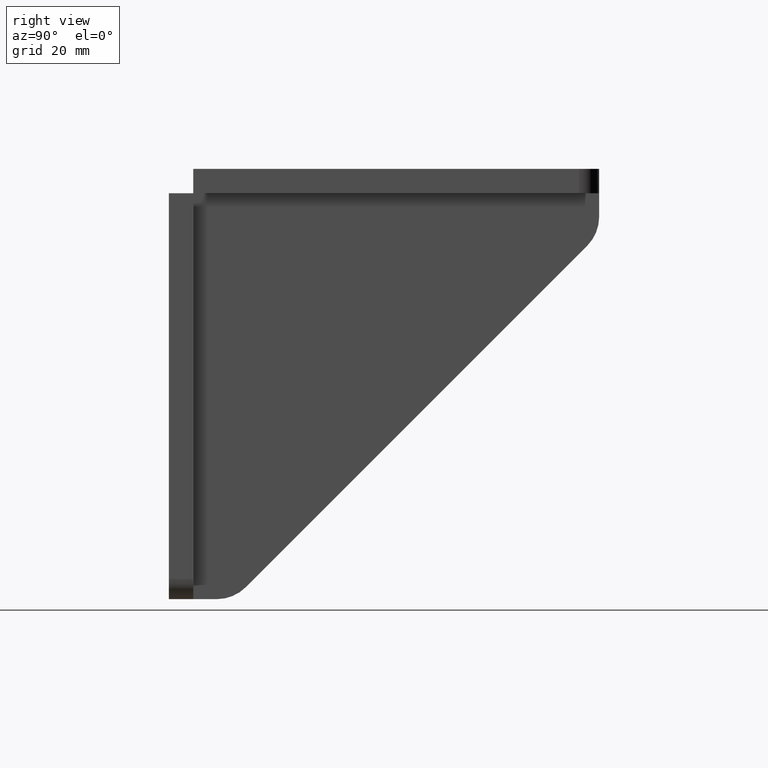
[diagram: clean part render]
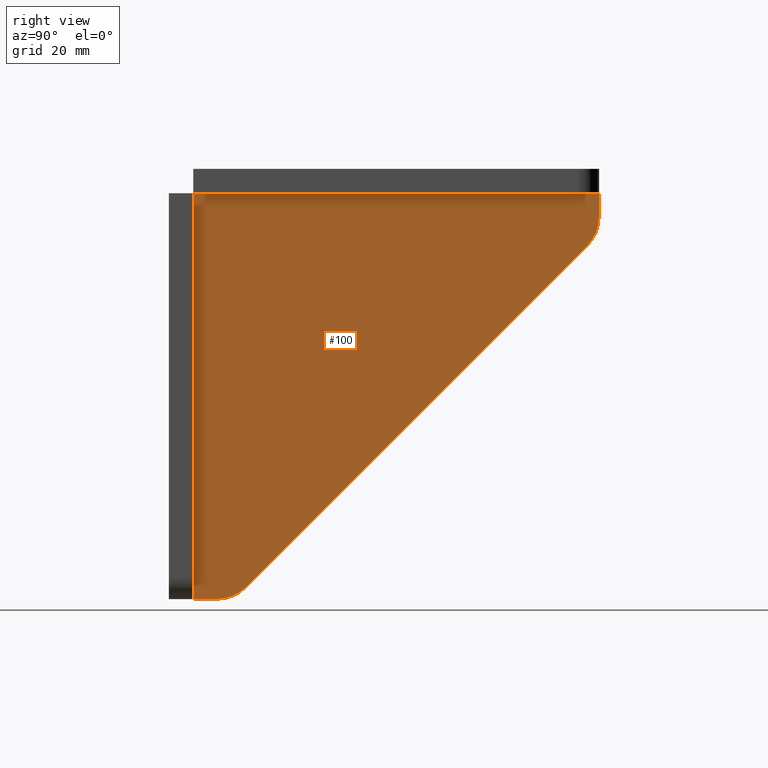
[diagram: same view with one face highlighted and labeled with its STEP entity id]
A machine part, right view. The second image highlights one B-rep face of the part: STEP entity #100.
In plain terms, the highlighted planar face has unit normal (-1, -0, 0).
Its self-contained STEP definition (entity closure, byte-faithful):
#13 = CARTESIAN_POINT ( 'NONE',  ( -11.99999999999990052, 40.00000000000000711, -4.440892098500626162E-13 ) ) ;
#28 = EDGE_CURVE ( 'NONE', #1065, #1326, #368, .T. ) ;
#38 = ORIENTED_EDGE ( 'NONE', *, *, #405, .T. ) ;
#45 = CARTESIAN_POINT ( 'NONE',  ( 12.92893218813440015, 97.07106781186548972, 2.775557561562891351E-13 ) ) ;
#54 = CARTESIAN_POINT ( 'NONE',  ( 0.000000000000000000, 99.99999999999998579, 0.000000000000000000 ) ) ;
#58 = CARTESIAN_POINT ( 'NONE',  ( 0.000000000000000000, 99.99999999999998579, 0.000000000000000000 ) ) ;
#85 = CIRCLE ( 'NONE', #872, 1.000000000000000000 ) ;
#98 = CARTESIAN_POINT ( 'NONE',  ( 59.99999999999994316, -6.000000000000000888, -1.387778780781445676E-13 ) ) ;
#100 = ADVANCED_FACE ( 'NONE', ( #884 ), #362, .F. ) ;
#104 = ORIENTED_EDGE ( 'NONE', *, *, #179, .T. ) ;
#112 = VECTOR ( 'NONE', #1224, 1000.000000000000000 ) ;
#117 = DIRECTION ( 'NONE',  ( 1.000000000000000000, 3.620748295448003404E-32, -3.978414497066003544E-35 ) ) ;
#118 = CARTESIAN_POINT ( 'NONE',  ( 39.99999999999970157, -11.99999999999999645, -1.665334536937734811E-13 ) ) ;
#120 = VERTEX_POINT ( 'NONE', #240 ) ;
#122 = EDGE_CURVE ( 'NONE', #563, #1318, #738, .T. ) ;
#127 = ORIENTED_EDGE ( 'NONE', *, *, #1520, .T. ) ;
#136 = CIRCLE ( 'NONE', #1249, 1.000000000000000000 ) ;
#137 = EDGE_CURVE ( 'NONE', #465, #1589, #345, .T. ) ;
#170 = CARTESIAN_POINT ( 'NONE',  ( 39.99999999999970157, -7.806255641895631925E-15, -1.665334536937734811E-13 ) ) ;
#176 = ORIENTED_EDGE ( 'NONE', *, *, #390, .T. ) ;
#177 = DIRECTION ( 'NONE',  ( -3.978414497066059672E-35, 5.700752635386218125E-32, 1.000000000000000000 ) ) ;
#179 = EDGE_CURVE ( 'NONE', #1533, #1065, #136, .T. ) ;
#181 = LINE ( 'NONE', #1538, #1122 ) ;
#187 = DIRECTION ( 'NONE',  ( -1.000000000000000000, 3.556183125752456121E-15, 0.000000000000000000 ) ) ;
#215 = LINE ( 'NONE', #1217, #455 ) ;
#224 = CARTESIAN_POINT ( 'NONE',  ( -6.000000000000782485, 40.00000000000000711, -3.885780586188047891E-13 ) ) ;
#240 = CARTESIAN_POINT ( 'NONE',  ( 59.99999999999994316, -4.999999999999997335, -1.387778780781445676E-13 ) ) ;
#256 = DIRECTION ( 'NONE',  ( -1.000000000000000000, -3.620748295448003404E-32, 3.978414497066003544E-35 ) ) ;
#270 = DIRECTION ( 'NONE',  ( -3.978414497066059672E-35, 5.700752635386218125E-32, 1.000000000000000000 ) ) ;
#278 = CARTESIAN_POINT ( 'NONE',  ( 58.99999999999960920, -6.000000000000000888, -1.665334536937734811E-13 ) ) ;
#279 = EDGE_CURVE ( 'NONE', #1326, #563, #181, .T. ) ;
#283 = CARTESIAN_POINT ( 'NONE',  ( -11.99999999999990052, 59.99999999999997158, -3.885780586188047891E-13 ) ) ;
#290 = VECTOR ( 'NONE', #117, 1000.000000000000000 ) ;
#309 = CARTESIAN_POINT ( 'NONE',  ( 39.99999999999970157, -4.999999999999997335, -1.665334536937734811E-13 ) ) ;
#331 = CARTESIAN_POINT ( 'NONE',  ( 41.00000000000003553, -6.000000000000003553, -2.775557561562891351E-14 ) ) ;
#342 = CARTESIAN_POINT ( 'NONE',  ( -6.000000000000782485, 58.99999999999997158, -3.885780586188047891E-13 ) ) ;
#345 = CIRCLE ( 'NONE', #1069, 9.999999999999994671 ) ;
#357 = LINE ( 'NONE', #1347, #112 ) ;
#362 = PLANE ( 'NONE',  #529 ) ;
#368 = LINE ( 'NONE', #13, #1070 ) ;
#374 = VECTOR ( 'NONE', #1232, 1000.000000000000000 ) ;
#390 = EDGE_CURVE ( 'NONE', #860, #1094, #968, .T. ) ;
#396 = DIRECTION ( 'NONE',  ( -1.000000000000000000, 0.000000000000000000, 0.000000000000000000 ) ) ;
#398 = DIRECTION ( 'NONE',  ( -4.237045877651918877E-32, -1.000000000000000000, -4.005934284325450574E-32 ) ) ;
#405 = EDGE_CURVE ( 'NONE', #962, #1533, #934, .T. ) ;
#418 = ORIENTED_EDGE ( 'NONE', *, *, #1554, .T. ) ;
#455 = VECTOR ( 'NONE', #703, 1000.000000000000000 ) ;
#465 = VERTEX_POINT ( 'NONE', #475 ) ;
#467 = LINE ( 'NONE', #591, #1570 ) ;
#475 = CARTESIAN_POINT ( 'NONE',  ( 99.99999999999997158, 5.857864376269037443, 1.942890293094023946E-13 ) ) ;
#486 = CARTESIAN_POINT ( 'NONE',  ( 5.857864376268673290, 90.00000000000001421, -1.665334536937734811E-13 ) ) ;
#491 = EDGE_CURVE ( 'NONE', #1272, #899, #530, .T. ) ;
#511 = CARTESIAN_POINT ( 'NONE',  ( 59.99999999999994316, -11.99999999999999645, -1.387778780781445676E-13 ) ) ;
#529 = AXIS2_PLACEMENT_3D ( 'NONE', #1376, #1369, #256 ) ;
#530 = CIRCLE ( 'NONE', #1384, 10.00000000000000000 ) ;
#542 = CARTESIAN_POINT ( 'NONE',  ( -5.000000000000559552, 41.00000000000000711, -2.775557561562891351E-13 ) ) ;
#563 = VERTEX_POINT ( 'NONE', #1475 ) ;
#570 = ORIENTED_EDGE ( 'NONE', *, *, #28, .T. ) ;
#577 = ORIENTED_EDGE ( 'NONE', *, *, #1443, .F. ) ;
#591 = CARTESIAN_POINT ( 'NONE',  ( 9.999999999999786837, 99.99999999999998579, 2.775557561562891351E-13 ) ) ;
#596 = ORIENTED_EDGE ( 'NONE', *, *, #1262, .T. ) ;
#598 = CARTESIAN_POINT ( 'NONE',  ( 99.99999999999997158, -2.602085213965210642E-15, 1.942890293094023946E-13 ) ) ;
#624 = CARTESIAN_POINT ( 'NONE',  ( 89.99999999999963052, 5.857864376269037443, -8.326672684688674053E-14 ) ) ;
#629 = VECTOR ( 'NONE', #1089, 1000.000000000000000 ) ;
#652 = DIRECTION ( 'NONE',  ( -1.000000000000000000, 0.000000000000000000, 0.000000000000000000 ) ) ;
#663 = ORIENTED_EDGE ( 'NONE', *, *, #491, .T. ) ;
#667 = DIRECTION ( 'NONE',  ( -3.978414497066059672E-35, 5.700752635386218125E-32, 1.000000000000000000 ) ) ;
#669 = DIRECTION ( 'NONE',  ( -3.978414497066059672E-35, 5.700752635386218125E-32, 1.000000000000000000 ) ) ;
#672 = ORIENTED_EDGE ( 'NONE', *, *, #122, .T. ) ;
#673 = EDGE_CURVE ( 'NONE', #754, #120, #1251, .T. ) ;
#677 = EDGE_LOOP ( 'NONE', ( #1486, #1314, #871, #663, #1525, #176, #811, #596, #38, #104, #570, #1005, #672, #906, #1091, #577, #722, #418, #127 ) ) ;
#696 = DIRECTION ( 'NONE',  ( -1.000000000000000000, 0.000000000000000000, 0.000000000000000000 ) ) ;
#703 = DIRECTION ( 'NONE',  ( 4.237045877651918877E-32, 1.000000000000000000, 4.005934284325450574E-32 ) ) ;
#722 = ORIENTED_EDGE ( 'NONE', *, *, #673, .T. ) ;
#738 = LINE ( 'NONE', #1231, #290 ) ;
#740 = LINE ( 'NONE', #98, #374 ) ;
#754 = VERTEX_POINT ( 'NONE', #278 ) ;
#755 = LINE ( 'NONE', #283, #1543 ) ;
#771 = DIRECTION ( 'NONE',  ( 4.237045877651918877E-32, 1.000000000000000000, 4.005934284325450574E-32 ) ) ;
#773 = DIRECTION ( 'NONE',  ( 1.000000000000000000, 3.620748295448003404E-32, -3.978414497066003544E-35 ) ) ;
#795 = VERTEX_POINT ( 'NONE', #1143 ) ;
#802 = LINE ( 'NONE', #54, #1152 ) ;
#811 = ORIENTED_EDGE ( 'NONE', *, *, #1092, .F. ) ;
#823 = CARTESIAN_POINT ( 'NONE',  ( 5.857864376268673290, 99.99999999999998579, -1.665334536937734811E-13 ) ) ;
#827 = CARTESIAN_POINT ( 'NONE',  ( -6.000000000000782485, 41.00000000000000711, -3.885780586188047891E-13 ) ) ;
#855 = DIRECTION ( 'NONE',  ( -1.000000000000000000, 2.775557561562891351E-15, 0.000000000000000000 ) ) ;
#860 = VERTEX_POINT ( 'NONE', #58 ) ;
#869 = CARTESIAN_POINT ( 'NONE',  ( 97.07106781186503497, 12.92893218813452272, 3.053113317719180486E-13 ) ) ;
#871 = ORIENTED_EDGE ( 'NONE', *, *, #984, .T. ) ;
#872 = AXIS2_PLACEMENT_3D ( 'NONE', #1185, #177, #1174 ) ;
#884 = FACE_OUTER_BOUND ( 'NONE', #677, .T. ) ;
#899 = VERTEX_POINT ( 'NONE', #823 ) ;
#906 = ORIENTED_EDGE ( 'NONE', *, *, #1474, .F. ) ;
#918 = VECTOR ( 'NONE', #1567, 1000.000000000000000 ) ;
#934 = LINE ( 'NONE', #224, #1537 ) ;
#948 = VERTEX_POINT ( 'NONE', #598 ) ;
#962 = VERTEX_POINT ( 'NONE', #342 ) ;
#968 = LINE ( 'NONE', #1206, #629 ) ;
#984 = EDGE_CURVE ( 'NONE', #1589, #1272, #467, .T. ) ;
#1002 = CARTESIAN_POINT ( 'NONE',  ( 0.000000000000000000, 59.99999999999997158, 0.000000000000000000 ) ) ;
#1005 = ORIENTED_EDGE ( 'NONE', *, *, #279, .T. ) ;
#1015 = CARTESIAN_POINT ( 'NONE',  ( -5.000000000000559552, 40.00000000000000711, -2.775557561562891351E-13 ) ) ;
#1026 = VERTEX_POINT ( 'NONE', #1247 ) ;
#1030 = DIRECTION ( 'NONE',  ( -3.978414497066059672E-35, 5.700752635386218125E-32, 1.000000000000000000 ) ) ;
#1033 = DIRECTION ( 'NONE',  ( -3.978414497066059672E-35, 5.700752635386218125E-32, 1.000000000000000000 ) ) ;
#1065 = VERTEX_POINT ( 'NONE', #1015 ) ;
#1069 = AXIS2_PLACEMENT_3D ( 'NONE', #624, #1030, #187 ) ;
#1070 = VECTOR ( 'NONE', #1604, 1000.000000000000000 ) ;
#1080 = DIRECTION ( 'NONE',  ( -0.7071067811865483499, 0.7071067811865465735, -2.140574041746968964E-16 ) ) ;
#1089 = DIRECTION ( 'NONE',  ( -4.237045877651918877E-32, -1.000000000000000000, -4.005934284325450574E-32 ) ) ;
#1091 = ORIENTED_EDGE ( 'NONE', *, *, #1241, .T. ) ;
#1092 = EDGE_CURVE ( 'NONE', #1026, #1094, #755, .T. ) ;
#1094 = VERTEX_POINT ( 'NONE', #1002 ) ;
#1122 = VECTOR ( 'NONE', #398, 1000.000000000000000 ) ;
#1143 = CARTESIAN_POINT ( 'NONE',  ( 59.99999999999994316, -2.602085213965210642E-15, -1.387778780781445676E-13 ) ) ;
#1152 = VECTOR ( 'NONE', #1160, 1000.000000000000000 ) ;
#1160 = DIRECTION ( 'NONE',  ( -1.000000000000000000, -3.620748295448003404E-32, 3.978414497066003544E-35 ) ) ;
#1174 = DIRECTION ( 'NONE',  ( -1.000000000000000000, 0.000000000000000000, 0.000000000000000000 ) ) ;
#1178 = CIRCLE ( 'NONE', #1386, 1.000000000000000888 ) ;
#1185 = CARTESIAN_POINT ( 'NONE',  ( -5.000000000000004441, 58.99999999999997158, 1.110223024625156540E-13 ) ) ;
#1190 = DIRECTION ( 'NONE',  ( -4.237045877651918877E-32, -1.000000000000000000, -4.005934284325450574E-32 ) ) ;
#1206 = CARTESIAN_POINT ( 'NONE',  ( 0.000000000000000000, 0.000000000000000000, 0.000000000000000000 ) ) ;
#1217 = CARTESIAN_POINT ( 'NONE',  ( 99.99999999999997158, 9.999999999999991118, 1.942890293094023946E-13 ) ) ;
#1224 = DIRECTION ( 'NONE',  ( 1.000000000000000000, 3.620748295448003404E-32, -3.978414497066003544E-35 ) ) ;
#1231 = CARTESIAN_POINT ( 'NONE',  ( 0.000000000000000000, 0.000000000000000000, 0.000000000000000000 ) ) ;
#1232 = DIRECTION ( 'NONE',  ( -1.000000000000000000, -3.620748295448003404E-32, 3.978414497066003544E-35 ) ) ;
#1241 = EDGE_CURVE ( 'NONE', #1279, #1500, #1178, .T. ) ;
#1245 = LINE ( 'NONE', #511, #1284 ) ;
#1247 = CARTESIAN_POINT ( 'NONE',  ( -5.000000000000004441, 59.99999999999997158, 1.110223024625156540E-13 ) ) ;
#1249 = AXIS2_PLACEMENT_3D ( 'NONE', #542, #669, #652 ) ;
#1251 = CIRCLE ( 'NONE', #1464, 1.000000000000000888 ) ;
#1262 = EDGE_CURVE ( 'NONE', #1026, #962, #85, .T. ) ;
#1272 = VERTEX_POINT ( 'NONE', #45 ) ;
#1279 = VERTEX_POINT ( 'NONE', #309 ) ;
#1282 = EDGE_CURVE ( 'NONE', #899, #860, #802, .T. ) ;
#1284 = VECTOR ( 'NONE', #771, 1000.000000000000000 ) ;
#1285 = CARTESIAN_POINT ( 'NONE',  ( 58.99999999999960920, -4.999999999999997335, -1.665334536937734811E-13 ) ) ;
#1314 = ORIENTED_EDGE ( 'NONE', *, *, #137, .T. ) ;
#1318 = VERTEX_POINT ( 'NONE', #170 ) ;
#1326 = VERTEX_POINT ( 'NONE', #1553 ) ;
#1347 = CARTESIAN_POINT ( 'NONE',  ( 0.000000000000000000, 0.000000000000000000, 0.000000000000000000 ) ) ;
#1369 = DIRECTION ( 'NONE',  ( -3.978414497066003544E-35, -5.700752635386218125E-32, -1.000000000000000000 ) ) ;
#1376 = CARTESIAN_POINT ( 'NONE',  ( 0.000000000000000000, 0.000000000000000000, 0.000000000000000000 ) ) ;
#1384 = AXIS2_PLACEMENT_3D ( 'NONE', #486, #270, #855 ) ;
#1386 = AXIS2_PLACEMENT_3D ( 'NONE', #1534, #1033, #696 ) ;
#1437 = EDGE_CURVE ( 'NONE', #948, #465, #215, .T. ) ;
#1443 = EDGE_CURVE ( 'NONE', #754, #1500, #740, .T. ) ;
#1454 = LINE ( 'NONE', #118, #918 ) ;
#1464 = AXIS2_PLACEMENT_3D ( 'NONE', #1285, #667, #396 ) ;
#1474 = EDGE_CURVE ( 'NONE', #1279, #1318, #1454, .T. ) ;
#1475 = CARTESIAN_POINT ( 'NONE',  ( 0.000000000000000000, 0.000000000000000000, 0.000000000000000000 ) ) ;
#1486 = ORIENTED_EDGE ( 'NONE', *, *, #1437, .T. ) ;
#1500 = VERTEX_POINT ( 'NONE', #331 ) ;
#1520 = EDGE_CURVE ( 'NONE', #795, #948, #357, .T. ) ;
#1525 = ORIENTED_EDGE ( 'NONE', *, *, #1282, .T. ) ;
#1533 = VERTEX_POINT ( 'NONE', #827 ) ;
#1534 = CARTESIAN_POINT ( 'NONE',  ( 41.00000000000003553, -5.000000000000002665, -2.775557561562891351E-14 ) ) ;
#1537 = VECTOR ( 'NONE', #1190, 1000.000000000000000 ) ;
#1538 = CARTESIAN_POINT ( 'NONE',  ( 0.000000000000000000, 0.000000000000000000, 0.000000000000000000 ) ) ;
#1543 = VECTOR ( 'NONE', #773, 1000.000000000000000 ) ;
#1553 = CARTESIAN_POINT ( 'NONE',  ( 0.000000000000000000, 40.00000000000000711, 0.000000000000000000 ) ) ;
#1554 = EDGE_CURVE ( 'NONE', #120, #795, #1245, .T. ) ;
#1567 = DIRECTION ( 'NONE',  ( 4.237045877651918877E-32, 1.000000000000000000, 4.005934284325450574E-32 ) ) ;
#1570 = VECTOR ( 'NONE', #1080, 1000.000000000000114 ) ;
#1589 = VERTEX_POINT ( 'NONE', #869 ) ;
#1604 = DIRECTION ( 'NONE',  ( 1.000000000000000000, 3.620748295448003404E-32, -3.978414497066003544E-35 ) ) ;